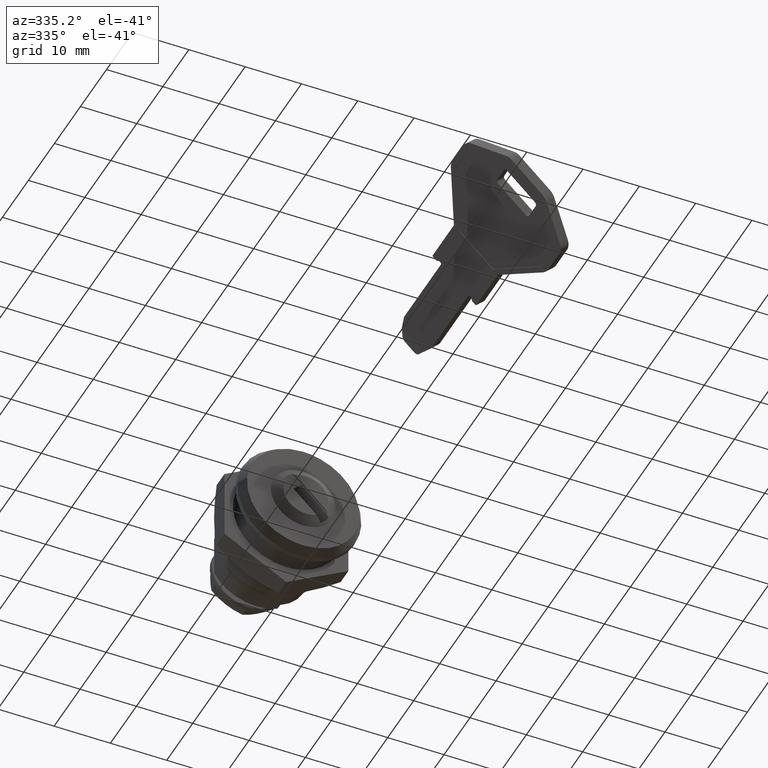
[diagram: clean part render]
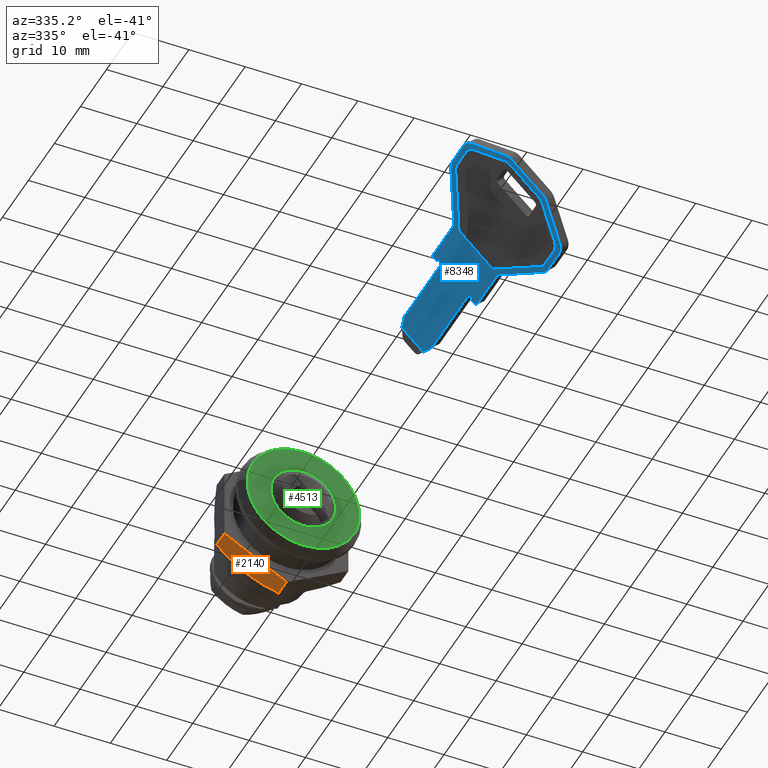
[diagram: same view with three faces highlighted in distinct colors, each labeled with its STEP entity id]
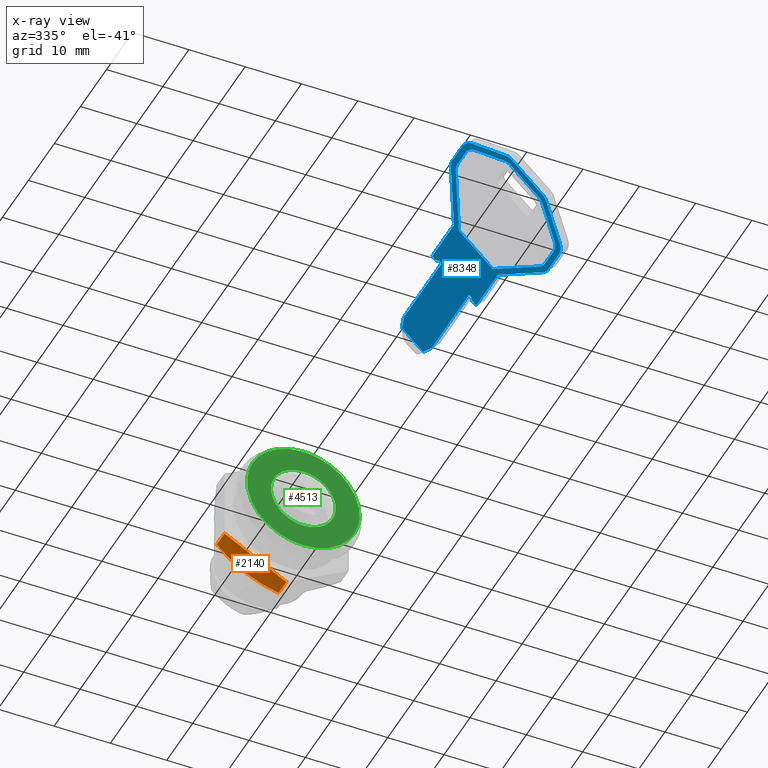
[diagram: x-ray of the same camera — body ghosted, the three highlighted faces saturated]
A machine part, auxiliary view with three faces highlighted in distinct colors.
The next image is the same camera in x-ray (body ghosted, the three faces saturated) — at least one of them is partly hidden behind the body in this view.
Their STEP definitions:

[orange] entity #2140 — the highlighted face is a freeform B-spline surface patch.
#1701=CARTESIAN_POINT('',(-5.499999999942680,8.0,-9.526279441475090));
#1702=VERTEX_POINT('',#1701);
#1866=CARTESIAN_POINT('',(-3.094187E-010,7.0,-12.701705921991399));
#1867=VERTEX_POINT('',#1866);
#1883=CARTESIAN_POINT('',(-3.094187E-010,7.0,-12.701705921991399));
#1884=CARTESIAN_POINT('',(-0.897390671200056,7.304464325262302,-12.183597176584550));
#1885=CARTESIAN_POINT('',(-1.801527311702609,7.555519008526865,-11.661593643806309));
#1886=CARTESIAN_POINT('',(-3.172334283524433,7.816493014346463,-10.870157869618140));
#1887=CARTESIAN_POINT('',(-3.631709724319129,7.884167932278352,-10.604937335216270));
#1888=CARTESIAN_POINT('',(-4.555988596839993,7.975751188450595,-10.071304679360180));
#1889=CARTESIAN_POINT('',(-5.020896851117833,7.999621345262170,-9.802889773604459));
#1890=CARTESIAN_POINT('',(-5.492515007715019,7.999998503333288,-9.530600903938415));
#1891=CARTESIAN_POINT('',(-5.496257409370683,7.999999999408750,-9.528440227335103));
#1892=CARTESIAN_POINT('',(-5.500000000103769,7.999999998507811,-9.526279441567890));
#1893=B_SPLINE_CURVE_WITH_KNOTS('',3,(#1883,#1884,#1885,#1886,#1887,#1888,#1889,#1890,#1891,#1892),.UNSPECIFIED.,.F.,.U.,(4,2,2,2,4),(0.0,0.250000000000000,0.375000000000000,0.500000000000000,0.500999787623325),.UNSPECIFIED.);
#1894=EDGE_CURVE('',#1867,#1702,#1893,.T.);
#1914=CARTESIAN_POINT('',(-11.0,7.0,-6.350852960781890));
#1915=VERTEX_POINT('',#1914);
#1916=CARTESIAN_POINT('',(-5.499999999942680,8.0,-9.526279441475090));
#1917=CARTESIAN_POINT('',(-5.613238213986109,7.999999971245863,-9.460901328300382));
#1918=CARTESIAN_POINT('',(-5.726649521151680,7.998629515743438,-9.395423279579207));
#1919=CARTESIAN_POINT('',(-5.957574947967782,7.993036632919321,-9.262098422244231));
#1920=CARTESIAN_POINT('',(-6.074949705895421,7.988722183411987,-9.194332074158652));
#1921=CARTESIAN_POINT('',(-6.426124768817859,7.971457702705862,-8.991581057047744));
#1922=CARTESIAN_POINT('',(-6.659396536889127,7.954173287218239,-8.856901538957489));
#1923=CARTESIAN_POINT('',(-7.356788676494619,7.885758877680175,-8.454261999425624));
#1924=CARTESIAN_POINT('',(-7.818480345211754,7.818029869564754,-8.187704190209232));
#1925=CARTESIAN_POINT('',(-9.195032415106715,7.556592680645004,-7.392951482102013));
#1926=CARTESIAN_POINT('',(-10.101404799745000,7.304872994714522,-6.869657141845171));
#1927=CARTESIAN_POINT('',(-11.000000000112850,6.999999999872600,-6.350852961020402));
#1928=B_SPLINE_CURVE_WITH_KNOTS('',3,(#1916,#1917,#1918,#1919,#1920,#1921,#1922,#1923,#1924,#1925,#1926,#1927),.UNSPECIFIED.,.F.,.U.,(4,2,2,2,2,4),(0.500999787651628,0.531250000000000,0.562500000000000,0.625000000000000,0.750000000000000,1.0),.UNSPECIFIED.);
#1929=EDGE_CURVE('',#1702,#1915,#1928,.T.);
#2061=CARTESIAN_POINT('',(-10.999999999989940,4.0,-6.350852961091360));
#2062=VERTEX_POINT('',#2061);
#2068=CARTESIAN_POINT('',(1.000469E-011,4.0,-12.701705922165839));
#2069=VERTEX_POINT('',#2068);
#2070=CARTESIAN_POINT('',(1.000469E-011,4.0,-12.701705922165839));
#2071=CARTESIAN_POINT('',(-10.999999999989940,4.0,-6.350852961091360));
#2072=QUASI_UNIFORM_CURVE('',1,(#2070,#2071),.UNSPECIFIED.,.F.,.U.);
#2073=EDGE_CURVE('',#2069,#2062,#2072,.T.);
#2109=CARTESIAN_POINT('',(-11.0,7.0,-6.350852960781890));
#2110=CARTESIAN_POINT('',(-10.999999999989940,4.0,-6.350852961091360));
#2111=QUASI_UNIFORM_CURVE('',1,(#2109,#2110),.UNSPECIFIED.,.F.,.U.);
#2112=EDGE_CURVE('',#1915,#2062,#2111,.T.);
#2124=CARTESIAN_POINT('',(-11.549449978818210,3.800200007752778,-6.033627867908697));
#2125=CARTESIAN_POINT('',(0.549450273735395,3.800200007752778,-13.018931185617410));
#2126=CARTESIAN_POINT('',(-11.549449978818210,8.199800099535580,-6.033627867908697));
#2127=CARTESIAN_POINT('',(0.549450273735396,8.199800099535580,-13.018931185617410));
#2128=B_SPLINE_SURFACE_WITH_KNOTS('',1,1,((#2124,#2126),(#2125,#2127)),.UNSPECIFIED.,.F.,.F.,.U.,(2,2),(2,2),(0.0,13.970606635419740),(0.0,4.399600091782801),.UNSPECIFIED.);
#2129=ORIENTED_EDGE('',*,*,#1894,.F.);
#2130=CARTESIAN_POINT('',(-3.094187E-010,7.0,-12.701705921991399));
#2131=CARTESIAN_POINT('',(1.000469E-011,4.0,-12.701705922165839));
#2132=QUASI_UNIFORM_CURVE('',1,(#2130,#2131),.UNSPECIFIED.,.F.,.U.);
#2133=EDGE_CURVE('',#1867,#2069,#2132,.T.);
#2134=ORIENTED_EDGE('',*,*,#2133,.T.);
#2135=ORIENTED_EDGE('',*,*,#2073,.T.);
#2136=ORIENTED_EDGE('',*,*,#2112,.F.);
#2137=ORIENTED_EDGE('',*,*,#1929,.F.);
#2138=EDGE_LOOP('',(#2129,#2134,#2135,#2136,#2137));
#2139=FACE_OUTER_BOUND('',#2138,.T.);
#2140=ADVANCED_FACE('',(#2139),#2128,.F.);

[blue] entity #8348 — the highlighted face is a freeform B-spline surface patch.
#6408=CARTESIAN_POINT('',(-3.712432859426663,-70.347984019646304,2.298219321256798));
#6409=VERTEX_POINT('',#6408);
#6410=CARTESIAN_POINT('',(-8.202595114907012,-78.817971744934098,6.788381576737147));
#6411=VERTEX_POINT('',#6410);
#6412=CARTESIAN_POINT('',(-3.712432859426663,-70.347984019646304,2.298219321256798));
#6413=CARTESIAN_POINT('',(-8.202595114907012,-78.817971744934098,6.788381576737147));
#6414=QUASI_UNIFORM_CURVE('',1,(#6412,#6413),.UNSPECIFIED.,.F.,.U.);
#6415=EDGE_CURVE('',#6409,#6411,#6414,.T.);
#6436=CARTESIAN_POINT('',(2.298219321261358,-70.347984019646404,-3.712432859431224));
#6437=VERTEX_POINT('',#6436);
#6438=CARTESIAN_POINT('',(2.298219321261358,-70.347984019646404,-3.712432859431224));
#6439=CARTESIAN_POINT('',(-3.712432859426663,-70.347984019646304,2.298219321256798));
#6440=QUASI_UNIFORM_CURVE('',1,(#6438,#6439),.UNSPECIFIED.,.F.,.U.);
#6441=EDGE_CURVE('',#6437,#6409,#6440,.T.);
#6458=CARTESIAN_POINT('',(6.788381576736915,-78.817971744925103,-8.202595114906782));
#6459=VERTEX_POINT('',#6458);
#6460=CARTESIAN_POINT('',(6.788381576736915,-78.817971744925103,-8.202595114906782));
#6461=CARTESIAN_POINT('',(2.298219321261358,-70.347984019646404,-3.712432859431224));
#6462=QUASI_UNIFORM_CURVE('',1,(#6460,#6461),.UNSPECIFIED.,.F.,.U.);
#6463=EDGE_CURVE('',#6459,#6437,#6462,.T.);
#6489=CARTESIAN_POINT('',(7.071067690849299,-80.017676412567297,-8.485281229019165));
#6490=VERTEX_POINT('',#6489);
#6491=CARTESIAN_POINT('',(7.071067690849299,-80.017676412567297,-8.485281229019165));
#6492=CARTESIAN_POINT('',(7.071067690849300,-79.351214817314997,-8.485281229019165));
#6493=CARTESIAN_POINT('',(6.788381576736905,-78.817971744925117,-8.202595114906771));
#6501=(BOUNDED_CURVE()B_SPLINE_CURVE(2,(#6491,#6492,#6493),.UNSPECIFIED.,.F.,.U.)CURVE()GEOMETRIC_REPRESENTATION_ITEM()QUASI_UNIFORM_CURVE()RATIONAL_B_SPLINE_CURVE((1.0,0.948712477082201,1.0))REPRESENTATION_ITEM(''));
#6502=EDGE_CURVE('',#6490,#6459,#6501,.T.);
#6519=CARTESIAN_POINT('',(7.071067690849299,-83.412432744212296,-8.485281229019165));
#6520=VERTEX_POINT('',#6519);
#6521=CARTESIAN_POINT('',(7.071067690849299,-83.412432744212296,-8.485281229019165));
#6522=CARTESIAN_POINT('',(7.071067690849299,-80.017676412567297,-8.485281229019165));
#6523=QUASI_UNIFORM_CURVE('',1,(#6521,#6522),.UNSPECIFIED.,.F.,.U.);
#6524=EDGE_CURVE('',#6520,#6490,#6523,.T.);
#6550=CARTESIAN_POINT('',(6.441318679806652,-85.076533332887806,-7.855532217976518));
#6551=VERTEX_POINT('',#6550);
#6552=CARTESIAN_POINT('',(6.441318679806703,-85.076533332887919,-7.855532217976569));
#6553=CARTESIAN_POINT('',(7.071067690849299,-84.482800261188203,-8.485281229019165));
#6554=CARTESIAN_POINT('',(7.071067690849299,-83.412432744212296,-8.485281229019165));
#6562=(BOUNDED_CURVE()B_SPLINE_CURVE(2,(#6552,#6553,#6554),.UNSPECIFIED.,.F.,.U.)CURVE()GEOMETRIC_REPRESENTATION_ITEM()QUASI_UNIFORM_CURVE()RATIONAL_B_SPLINE_CURVE((1.0,0.881674598767958,1.0))REPRESENTATION_ITEM(''));
#6563=EDGE_CURVE('',#6551,#6520,#6562,.T.);
#6580=CARTESIAN_POINT('',(2.617054110093343,-88.682084608321901,-4.031267648263210));
#6581=VERTEX_POINT('',#6580);
#6582=CARTESIAN_POINT('',(2.617054110093343,-88.682084608321901,-4.031267648263210));
#6583=CARTESIAN_POINT('',(6.441318679806652,-85.076533332887806,-7.855532217976518));
#6584=QUASI_UNIFORM_CURVE('',1,(#6582,#6583),.UNSPECIFIED.,.F.,.U.);
#6585=EDGE_CURVE('',#6581,#6551,#6584,.T.);
#6611=CARTESIAN_POINT('',(1.832589582966139,-89.017984019646192,-3.246803121136005));
#6612=VERTEX_POINT('',#6611);
#6613=CARTESIAN_POINT('',(1.832589582966139,-89.017984019646207,-3.246803121136005));
#6614=CARTESIAN_POINT('',(2.260778988874741,-89.017984019646207,-3.674992527044608));
#6615=CARTESIAN_POINT('',(2.617054110093339,-88.682084608321887,-4.031267648263205));
#6623=(BOUNDED_CURVE()B_SPLINE_CURVE(2,(#6613,#6614,#6615),.UNSPECIFIED.,.F.,.U.)CURVE()GEOMETRIC_REPRESENTATION_ITEM()QUASI_UNIFORM_CURVE()RATIONAL_B_SPLINE_CURVE((1.0,0.957092026489052,1.0))REPRESENTATION_ITEM(''));
#6624=EDGE_CURVE('',#6612,#6581,#6623,.T.);
#6641=CARTESIAN_POINT('',(-3.246803121027465,-89.017984019646292,1.832589582857599));
#6642=VERTEX_POINT('',#6641);
#6643=CARTESIAN_POINT('',(-3.246803121027465,-89.017984019646292,1.832589582857599));
#6644=CARTESIAN_POINT('',(1.832589582966139,-89.017984019646192,-3.246803121136005));
#6645=QUASI_UNIFORM_CURVE('',1,(#6643,#6644),.UNSPECIFIED.,.F.,.U.);
#6646=EDGE_CURVE('',#6642,#6612,#6645,.T.);
#6672=CARTESIAN_POINT('',(-4.031267648154801,-88.682084608321901,2.617054109984935));
#6673=VERTEX_POINT('',#6672);
#6674=CARTESIAN_POINT('',(-4.031267648154788,-88.682084608321873,2.617054109984923));
#6675=CARTESIAN_POINT('',(-3.674992526936149,-89.017984019646306,2.260778988766282));
#6676=CARTESIAN_POINT('',(-3.246803121027465,-89.017984019646306,1.832589582857599));
#6684=(BOUNDED_CURVE()B_SPLINE_CURVE(2,(#6674,#6675,#6676),.UNSPECIFIED.,.F.,.U.)CURVE()GEOMETRIC_REPRESENTATION_ITEM()QUASI_UNIFORM_CURVE()RATIONAL_B_SPLINE_CURVE((1.0,0.957092026489037,1.0))REPRESENTATION_ITEM(''));
#6685=EDGE_CURVE('',#6673,#6642,#6684,.T.);
#6702=CARTESIAN_POINT('',(-7.855532217976537,-85.076533332785502,6.441318679806670));
#6703=VERTEX_POINT('',#6702);
#6704=CARTESIAN_POINT('',(-7.855532217976537,-85.076533332785502,6.441318679806670));
#6705=CARTESIAN_POINT('',(-4.031267648154801,-88.682084608321901,2.617054109984935));
#6706=QUASI_UNIFORM_CURVE('',1,(#6704,#6705),.UNSPECIFIED.,.F.,.U.);
#6707=EDGE_CURVE('',#6703,#6673,#6706,.T.);
#6733=CARTESIAN_POINT('',(-8.485281229019270,-83.412432744212296,7.071067690849404));
#6734=VERTEX_POINT('',#6733);
#6735=CARTESIAN_POINT('',(-8.485281229019170,-83.412432744212296,7.071067690849304));
#6736=CARTESIAN_POINT('',(-8.485281228980380,-84.482800261122335,7.071067690810516));
#6737=CARTESIAN_POINT('',(-7.855532217976522,-85.076533332785473,6.441318679806655));
#6745=(BOUNDED_CURVE()B_SPLINE_CURVE(2,(#6735,#6736,#6737),.UNSPECIFIED.,.F.,.U.)CURVE()GEOMETRIC_REPRESENTATION_ITEM()QUASI_UNIFORM_CURVE()RATIONAL_B_SPLINE_CURVE((1.0,0.881674598780038,1.0))REPRESENTATION_ITEM(''));
#6746=EDGE_CURVE('',#6734,#6703,#6745,.T.);
#6763=CARTESIAN_POINT('',(-8.485281229019270,-80.017676412567297,7.071067690849404));
#6764=VERTEX_POINT('',#6763);
#6765=CARTESIAN_POINT('',(-8.485281229019270,-80.017676412567297,7.071067690849404));
#6766=CARTESIAN_POINT('',(-8.485281229019270,-83.412432744212296,7.071067690849404));
#6767=QUASI_UNIFORM_CURVE('',1,(#6765,#6766),.UNSPECIFIED.,.F.,.U.);
#6768=EDGE_CURVE('',#6764,#6734,#6767,.T.);
#6794=CARTESIAN_POINT('',(-8.202595114906853,-78.817971744934269,6.788381576736986));
#6795=CARTESIAN_POINT('',(-8.485281229017048,-79.351214817320098,7.071067690847182));
#6796=CARTESIAN_POINT('',(-8.485281229019170,-80.017676412567297,7.071067690849304));
#6804=(BOUNDED_CURVE()B_SPLINE_CURVE(2,(#6794,#6795,#6796),.UNSPECIFIED.,.F.,.U.)CURVE()GEOMETRIC_REPRESENTATION_ITEM()QUASI_UNIFORM_CURVE()RATIONAL_B_SPLINE_CURVE((1.0,0.948712477082927,1.0))REPRESENTATION_ITEM(''));
#6805=EDGE_CURVE('',#6411,#6764,#6804,.T.);
#6818=CARTESIAN_POINT('',(-2.612366674671664,-46.017984019645802,1.198153136501800));
#6819=VERTEX_POINT('',#6818);
#6820=CARTESIAN_POINT('',(1.198153136504262,-46.017984019645802,-2.612366674674125));
#6821=VERTEX_POINT('',#6820);
#6822=CARTESIAN_POINT('',(-2.612366674671664,-46.017984019645802,1.198153136501800));
#6823=CARTESIAN_POINT('',(1.198153136504262,-46.017984019645802,-2.612366674674125));
#6824=QUASI_UNIFORM_CURVE('',1,(#6822,#6823),.UNSPECIFIED.,.F.,.U.);
#6825=EDGE_CURVE('',#6819,#6821,#6824,.T.);
#7059=CARTESIAN_POINT('',(-9.192387998118271,-83.947616502736295,7.778174459948405));
#7060=VERTEX_POINT('',#7059);
#7061=CARTESIAN_POINT('',(-8.562638987068027,-85.611717091422307,7.148425448898162));
#7062=VERTEX_POINT('',#7061);
#7063=CARTESIAN_POINT('',(-9.192387998118271,-83.947616502736295,7.778174459948405));
#7064=CARTESIAN_POINT('',(-9.192387998114873,-85.017984019719137,7.778174459945006));
#7065=CARTESIAN_POINT('',(-8.562638987068031,-85.611717091422307,7.148425448898164));
#7073=(BOUNDED_CURVE()B_SPLINE_CURVE(2,(#7063,#7064,#7065),.UNSPECIFIED.,.F.,.U.)CURVE()GEOMETRIC_REPRESENTATION_ITEM()QUASI_UNIFORM_CURVE()RATIONAL_B_SPLINE_CURVE((1.0,0.881674598766678,1.0))REPRESENTATION_ITEM(''));
#7074=EDGE_CURVE('',#7060,#7062,#7073,.T.);
#7095=CARTESIAN_POINT('',(-9.192387998118186,-79.682605071029101,7.778174459948319));
#7096=VERTEX_POINT('',#7095);
#7097=CARTESIAN_POINT('',(-9.192387998118186,-79.682605071029101,7.778174459948319));
#7098=CARTESIAN_POINT('',(-9.192387998118271,-83.947616502736295,7.778174459948405));
#7099=QUASI_UNIFORM_CURVE('',1,(#7097,#7098),.UNSPECIFIED.,.F.,.U.);
#7100=EDGE_CURVE('',#7096,#7060,#7099,.T.);
#7126=CARTESIAN_POINT('',(-8.911106036181378,-78.485553693996295,7.496892498011512));
#7127=VERTEX_POINT('',#7126);
#7128=CARTESIAN_POINT('',(-8.911106036181378,-78.485553693996295,7.496892498011512));
#7129=CARTESIAN_POINT('',(-9.192387998118845,-79.017984019909576,7.778174459948978));
#7130=CARTESIAN_POINT('',(-9.192387998118186,-79.682605071029101,7.778174459948319));
#7138=(BOUNDED_CURVE()B_SPLINE_CURVE(2,(#7128,#7129,#7130),.UNSPECIFIED.,.F.,.U.)CURVE()GEOMETRIC_REPRESENTATION_ITEM()QUASI_UNIFORM_CURVE()RATIONAL_B_SPLINE_CURVE((1.0,0.948974081281307,1.0))REPRESENTATION_ITEM(''));
#7139=EDGE_CURVE('',#7127,#7096,#7138,.T.);
#7156=CARTESIAN_POINT('',(-4.596193999052151,-70.317984019646204,3.181980460882286));
#7157=VERTEX_POINT('',#7156);
#7158=CARTESIAN_POINT('',(-4.596193999052151,-70.317984019646204,3.181980460882286));
#7159=CARTESIAN_POINT('',(-8.911106036181378,-78.485553693996295,7.496892498011512));
#7160=QUASI_UNIFORM_CURVE('',1,(#7158,#7159),.UNSPECIFIED.,.F.,.U.);
#7161=EDGE_CURVE('',#7157,#7127,#7160,.T.);
#7178=CARTESIAN_POINT('',(-4.596193999052158,-62.217984019645201,3.181980460882293));
#7179=VERTEX_POINT('',#7178);
#7180=CARTESIAN_POINT('',(-4.596193999052158,-62.217984019645201,3.181980460882293));
#7181=CARTESIAN_POINT('',(-4.596193999052151,-70.317984019646204,3.181980460882286));
#7182=QUASI_UNIFORM_CURVE('',1,(#7180,#7181),.UNSPECIFIED.,.F.,.U.);
#7183=EDGE_CURVE('',#7179,#7157,#7182,.T.);
#7209=CARTESIAN_POINT('',(-4.454772645235137,-62.017984019646200,3.040559107065272));
#7210=VERTEX_POINT('',#7209);
#7211=CARTESIAN_POINT('',(-4.454772645235137,-62.017984019646200,3.040559107065272));
#7212=CARTESIAN_POINT('',(-4.596193999037597,-62.017984019665739,3.181980460867732));
#7213=CARTESIAN_POINT('',(-4.596193999052160,-62.217984019645201,3.181980460882295));
#7221=(BOUNDED_CURVE()B_SPLINE_CURVE(2,(#7211,#7212,#7213),.UNSPECIFIED.,.F.,.U.)CURVE()GEOMETRIC_REPRESENTATION_ITEM()QUASI_UNIFORM_CURVE()RATIONAL_B_SPLINE_CURVE((1.0,0.707106781222954,1.0))REPRESENTATION_ITEM(''));
#7222=EDGE_CURVE('',#7210,#7179,#7221,.T.);
#7239=CARTESIAN_POINT('',(-3.915000149279887,-62.017984019646299,2.500786611110022));
#7240=VERTEX_POINT('',#7239);
#7241=CARTESIAN_POINT('',(-3.915000149279887,-62.017984019646299,2.500786611110022));
#7242=CARTESIAN_POINT('',(-4.454772645235137,-62.017984019646200,3.040559107065272));
#7243=QUASI_UNIFORM_CURVE('',1,(#7241,#7242),.UNSPECIFIED.,.F.,.U.);
#7244=EDGE_CURVE('',#7240,#7210,#7243,.T.);
#7270=CARTESIAN_POINT('',(-3.811828010166809,-62.081195793866399,2.397614471996944));
#7271=VERTEX_POINT('',#7270);
#7272=CARTESIAN_POINT('',(-3.811828010166809,-62.081195793866399,2.397614471996944));
#7273=CARTESIAN_POINT('',(-3.853731891543416,-62.017984019646370,2.439518353373552));
#7274=CARTESIAN_POINT('',(-3.915000149279887,-62.017984019646342,2.500786611110022));
#7282=(BOUNDED_CURVE()B_SPLINE_CURVE(2,(#7272,#7273,#7274),.UNSPECIFIED.,.F.,.U.)CURVE()GEOMETRIC_REPRESENTATION_ITEM()QUASI_UNIFORM_CURVE()RATIONAL_B_SPLINE_CURVE((1.0,0.917589540245754,1.0))REPRESENTATION_ITEM(''));
#7283=EDGE_CURVE('',#7271,#7240,#7282,.T.);
#7300=CARTESIAN_POINT('',(-3.630470734446273,-62.354772245407503,2.216257196276408));
#7301=VERTEX_POINT('',#7300);
#7302=CARTESIAN_POINT('',(-3.630470734446273,-62.354772245407503,2.216257196276408));
#7303=CARTESIAN_POINT('',(-3.811828010166809,-62.081195793866399,2.397614471996944));
#7304=QUASI_UNIFORM_CURVE('',1,(#7302,#7303),.UNSPECIFIED.,.F.,.U.);
#7305=EDGE_CURVE('',#7301,#7271,#7304,.T.);
#7331=CARTESIAN_POINT('',(-3.527298595388518,-62.417984019646312,2.113085057218653));
#7332=VERTEX_POINT('',#7331);
#7333=CARTESIAN_POINT('',(-3.630470734446289,-62.354772245407517,2.216257196276424));
#7334=CARTESIAN_POINT('',(-3.588566853104223,-62.417984019633082,2.174353314934359));
#7335=CARTESIAN_POINT('',(-3.527298595388518,-62.417984019646291,2.113085057218653));
#7343=(BOUNDED_CURVE()B_SPLINE_CURVE(2,(#7333,#7334,#7335),.UNSPECIFIED.,.F.,.U.)CURVE()GEOMETRIC_REPRESENTATION_ITEM()QUASI_UNIFORM_CURVE()RATIONAL_B_SPLINE_CURVE((1.0,0.917589540294916,1.0))REPRESENTATION_ITEM(''));
#7344=EDGE_CURVE('',#7301,#7332,#7343,.T.);
#7361=CARTESIAN_POINT('',(-3.288046476245015,-62.417984019645800,1.873832938075151));
#7362=VERTEX_POINT('',#7361);
#7363=CARTESIAN_POINT('',(-3.288046476245015,-62.417984019645800,1.873832938075151));
#7364=CARTESIAN_POINT('',(-3.527298595388518,-62.417984019646312,2.113085057218653));
#7365=QUASI_UNIFORM_CURVE('',1,(#7363,#7364),.UNSPECIFIED.,.F.,.U.);
#7366=EDGE_CURVE('',#7362,#7332,#7365,.T.);
#7392=CARTESIAN_POINT('',(-3.146625122428079,-62.217984019646401,1.732411584258214));
#7393=VERTEX_POINT('',#7392);
#7394=CARTESIAN_POINT('',(-3.288046476245015,-62.417984019645793,1.873832938075151));
#7395=CARTESIAN_POINT('',(-3.146625122428465,-62.417984019645793,1.732411584258599));
#7396=CARTESIAN_POINT('',(-3.146625122428037,-62.217984019646401,1.732411584258172));
#7404=(BOUNDED_CURVE()B_SPLINE_CURVE(2,(#7394,#7395,#7396),.UNSPECIFIED.,.F.,.U.)CURVE()GEOMETRIC_REPRESENTATION_ITEM()QUASI_UNIFORM_CURVE()RATIONAL_B_SPLINE_CURVE((1.0,0.707106781187615,1.0))REPRESENTATION_ITEM(''));
#7405=EDGE_CURVE('',#7362,#7393,#7404,.T.);
#7422=CARTESIAN_POINT('',(-3.146625122427996,-48.200575424542599,1.732411584258133));
#7423=VERTEX_POINT('',#7422);
#7424=CARTESIAN_POINT('',(-3.146625122427996,-48.200575424542599,1.732411584258133));
#7425=CARTESIAN_POINT('',(-3.146625122428079,-62.217984019646401,1.732411584258214));
#7426=QUASI_UNIFORM_CURVE('',1,(#7424,#7425),.UNSPECIFIED.,.F.,.U.);
#7427=EDGE_CURVE('',#7423,#7393,#7426,.T.);
#7453=CARTESIAN_POINT('',(-3.100997003067094,-47.847174855825912,1.686783464897230));
#7454=VERTEX_POINT('',#7453);
#7455=CARTESIAN_POINT('',(-3.100997003067094,-47.847174855825912,1.686783464897230));
#7456=CARTESIAN_POINT('',(-3.146625122428874,-48.017984019648381,1.732411584259011));
#7457=CARTESIAN_POINT('',(-3.146625122427996,-48.200575424542599,1.732411584258133));
#7465=(BOUNDED_CURVE()B_SPLINE_CURVE(2,(#7455,#7456,#7457),.UNSPECIFIED.,.F.,.U.)CURVE()GEOMETRIC_REPRESENTATION_ITEM()QUASI_UNIFORM_CURVE()RATIONAL_B_SPLINE_CURVE((1.0,0.983735760676532,1.0))REPRESENTATION_ITEM(''));
#7466=EDGE_CURVE('',#7454,#7423,#7465,.T.);
#7492=CARTESIAN_POINT('',(1.732411584258048,-48.200575424545796,-3.146625122427912));
#7493=VERTEX_POINT('',#7492);
#7494=CARTESIAN_POINT('',(1.686783464897655,-47.847174855822203,-3.100997003067519));
#7495=VERTEX_POINT('',#7494);
#7496=CARTESIAN_POINT('',(1.732411584258048,-48.200575424545796,-3.146625122427912));
#7497=CARTESIAN_POINT('',(1.732411584263450,-48.017984019647209,-3.146625122433314));
#7498=CARTESIAN_POINT('',(1.686783464897659,-47.847174855822203,-3.100997003067523));
#7506=(BOUNDED_CURVE()B_SPLINE_CURVE(2,(#7496,#7497,#7498),.UNSPECIFIED.,.F.,.U.)CURVE()GEOMETRIC_REPRESENTATION_ITEM()QUASI_UNIFORM_CURVE()RATIONAL_B_SPLINE_CURVE((1.0,0.983735760675772,1.0))REPRESENTATION_ITEM(''));
#7507=EDGE_CURVE('',#7493,#7495,#7506,.T.);
#7528=CARTESIAN_POINT('',(1.732411584229731,-62.217984019646302,-3.146625122399596));
#7529=VERTEX_POINT('',#7528);
#7530=CARTESIAN_POINT('',(1.732411584229731,-62.217984019646302,-3.146625122399596));
#7531=CARTESIAN_POINT('',(1.732411584258048,-48.200575424545796,-3.146625122427912));
#7532=QUASI_UNIFORM_CURVE('',1,(#7530,#7531),.UNSPECIFIED.,.F.,.U.);
#7533=EDGE_CURVE('',#7529,#7493,#7532,.T.);
#7559=CARTESIAN_POINT('',(1.873832938075005,-62.417984019646312,-3.288046476244870));
#7560=VERTEX_POINT('',#7559);
#7561=CARTESIAN_POINT('',(1.732411584229731,-62.217984019646302,-3.146625122399596));
#7562=CARTESIAN_POINT('',(1.732233237065539,-62.263861883969959,-3.146446775235403));
#7563=CARTESIAN_POINT('',(1.752355113013847,-62.342071030676983,-3.166568651183712));
#7564=CARTESIAN_POINT('',(1.813660713404078,-62.406282811982287,-3.227874251573946));
#7565=CARTESIAN_POINT('',(1.855331509362423,-62.418008561580812,-3.269545047532284));
#7566=CARTESIAN_POINT('',(1.873832938075005,-62.417984019646312,-3.288046476244870));
#7567=B_SPLINE_CURVE_WITH_KNOTS('',3,(#7561,#7562,#7563,#7564,#7565,#7566),.UNSPECIFIED.,.F.,.U.,(4,1,1,4),(0.000000859340513,0.137513072128217,0.235713900700947,0.314284914487710),.UNSPECIFIED.);
#7568=EDGE_CURVE('',#7529,#7560,#7567,.T.);
#7585=CARTESIAN_POINT('',(2.113085057217801,-62.417984019706303,-3.527298595387665));
#7586=VERTEX_POINT('',#7585);
#7587=CARTESIAN_POINT('',(2.113085057217801,-62.417984019706303,-3.527298595387665));
#7588=CARTESIAN_POINT('',(1.873832938075005,-62.417984019646312,-3.288046476244870));
#7589=QUASI_UNIFORM_CURVE('',1,(#7587,#7588),.UNSPECIFIED.,.F.,.U.);
#7590=EDGE_CURVE('',#7586,#7560,#7589,.T.);
#7616=CARTESIAN_POINT('',(2.216257196282287,-62.354772245426403,-3.630470734452152));
#7617=VERTEX_POINT('',#7616);
#7618=CARTESIAN_POINT('',(2.113085057217801,-62.417984019706353,-3.527298595387665));
#7619=CARTESIAN_POINT('',(2.174353314945078,-62.417984019680837,-3.588566853114943));
#7620=CARTESIAN_POINT('',(2.216257196282559,-62.354772245426759,-3.630470734452424));
#7628=(BOUNDED_CURVE()B_SPLINE_CURVE(2,(#7618,#7619,#7620),.UNSPECIFIED.,.F.,.U.)CURVE()GEOMETRIC_REPRESENTATION_ITEM()QUASI_UNIFORM_CURVE()RATIONAL_B_SPLINE_CURVE((1.0,0.917589540267572,1.0))REPRESENTATION_ITEM(''));
#7629=EDGE_CURVE('',#7586,#7617,#7628,.T.);
#7646=CARTESIAN_POINT('',(2.397614471992453,-62.081195793866002,-3.811828010162318));
#7647=VERTEX_POINT('',#7646);
#7648=CARTESIAN_POINT('',(2.397614471992453,-62.081195793866002,-3.811828010162318));
#7649=CARTESIAN_POINT('',(2.216257196282287,-62.354772245426403,-3.630470734452152));
#7650=QUASI_UNIFORM_CURVE('',1,(#7648,#7649),.UNSPECIFIED.,.F.,.U.);
#7651=EDGE_CURVE('',#7647,#7617,#7650,.T.);
#7677=CARTESIAN_POINT('',(2.500786611060479,-62.017984019646200,-3.915000149230344));
#7678=VERTEX_POINT('',#7677);
#7679=CARTESIAN_POINT('',(2.500786611060479,-62.017984019646200,-3.915000149230344));
#7680=CARTESIAN_POINT('',(2.439518353347487,-62.017984019662890,-3.853731891517351));
#7681=CARTESIAN_POINT('',(2.397614471992432,-62.081195793865973,-3.811828010162297));
#7689=(BOUNDED_CURVE()B_SPLINE_CURVE(2,(#7679,#7680,#7681),.UNSPECIFIED.,.F.,.U.)CURVE()GEOMETRIC_REPRESENTATION_ITEM()QUASI_UNIFORM_CURVE()RATIONAL_B_SPLINE_CURVE((1.0,0.917589540301383,1.0))REPRESENTATION_ITEM(''));
#7690=EDGE_CURVE('',#7678,#7647,#7689,.T.);
#7707=CARTESIAN_POINT('',(3.040559107065062,-62.017984019646299,-4.454772645234927));
#7708=VERTEX_POINT('',#7707);
#7709=CARTESIAN_POINT('',(3.040559107065062,-62.017984019646299,-4.454772645234927));
#7710=CARTESIAN_POINT('',(2.500786611060479,-62.017984019646200,-3.915000149230344));
#7711=QUASI_UNIFORM_CURVE('',1,(#7709,#7710),.UNSPECIFIED.,.F.,.U.);
#7712=EDGE_CURVE('',#7708,#7678,#7711,.T.);
#7738=CARTESIAN_POINT('',(3.181980460882140,-62.217984019646302,-4.596193999052005));
#7739=VERTEX_POINT('',#7738);
#7740=CARTESIAN_POINT('',(3.181980460882140,-62.217984019646302,-4.596193999052005));
#7741=CARTESIAN_POINT('',(3.181993818638004,-62.191811320684913,-4.596207356807869));
#7742=CARTESIAN_POINT('',(3.173710839133737,-62.132893304202312,-4.587924377303602));
#7743=CARTESIAN_POINT('',(3.128299336275664,-62.046184677539230,-4.542512874445528));
#7744=CARTESIAN_POINT('',(3.073000025763064,-62.017733326881633,-4.487213563932930));
#7745=CARTESIAN_POINT('',(3.040559107065062,-62.017984019646299,-4.454772645234927));
#7746=B_SPLINE_CURVE_WITH_KNOTS('',3,(#7740,#7741,#7742,#7743,#7744,#7745),.UNSPECIFIED.,.F.,.U.,(4,1,1,4),(0.000000859341067,0.078571873121533,0.176772701686318,0.314284914463000),.UNSPECIFIED.);
#7747=EDGE_CURVE('',#7739,#7708,#7746,.T.);
#7764=CARTESIAN_POINT('',(3.181980460882182,-70.317984019646204,-4.596193999052048));
#7765=VERTEX_POINT('',#7764);
#7766=CARTESIAN_POINT('',(3.181980460882182,-70.317984019646204,-4.596193999052048));
#7767=CARTESIAN_POINT('',(3.181980460882140,-62.217984019646302,-4.596193999052005));
#7768=QUASI_UNIFORM_CURVE('',1,(#7766,#7767),.UNSPECIFIED.,.F.,.U.);
#7769=EDGE_CURVE('',#7765,#7739,#7768,.T.);
#7786=CARTESIAN_POINT('',(7.496892498012949,-78.485553693995882,-8.911106036182815));
#7787=VERTEX_POINT('',#7786);
#7788=CARTESIAN_POINT('',(7.496892498012949,-78.485553693995882,-8.911106036182815));
#7789=CARTESIAN_POINT('',(3.181980460882182,-70.317984019646204,-4.596193999052048));
#7790=QUASI_UNIFORM_CURVE('',1,(#7788,#7789),.UNSPECIFIED.,.F.,.U.);
#7791=EDGE_CURVE('',#7787,#7765,#7790,.T.);
#7817=CARTESIAN_POINT('',(7.778174459948330,-79.682605071026302,-9.192387998118196));
#7818=VERTEX_POINT('',#7817);
#7819=CARTESIAN_POINT('',(7.778174459948300,-79.682605071026302,-9.192387998118166));
#7820=CARTESIAN_POINT('',(7.778174459945948,-79.017984019909946,-9.192387998115814));
#7821=CARTESIAN_POINT('',(7.496892498012970,-78.485553693995854,-8.911106036182837));
#7829=(BOUNDED_CURVE()B_SPLINE_CURVE(2,(#7819,#7820,#7821),.UNSPECIFIED.,.F.,.U.)CURVE()GEOMETRIC_REPRESENTATION_ITEM()QUASI_UNIFORM_CURVE()RATIONAL_B_SPLINE_CURVE((1.0,0.948974081281752,1.0))REPRESENTATION_ITEM(''));
#7830=EDGE_CURVE('',#7818,#7787,#7829,.T.);
#7847=CARTESIAN_POINT('',(7.778174459948302,-83.947616502735897,-9.192387998118168));
#7848=VERTEX_POINT('',#7847);
#7849=CARTESIAN_POINT('',(7.778174459948302,-83.947616502735897,-9.192387998118168));
#7850=CARTESIAN_POINT('',(7.778174459948330,-79.682605071026302,-9.192387998118196));
#7851=QUASI_UNIFORM_CURVE('',1,(#7849,#7850),.UNSPECIFIED.,.F.,.U.);
#7852=EDGE_CURVE('',#7848,#7818,#7851,.T.);
#7878=CARTESIAN_POINT('',(7.148425448898355,-85.611717091416310,-8.562638987068223));
#7879=VERTEX_POINT('',#7878);
#7880=CARTESIAN_POINT('',(7.148425448898355,-85.611717091416310,-8.562638987068223));
#7881=CARTESIAN_POINT('',(7.778174459948453,-85.017984019719208,-9.192387998118319));
#7882=CARTESIAN_POINT('',(7.778174459948300,-83.947616502735897,-9.192387998118166));
#7890=(BOUNDED_CURVE()B_SPLINE_CURVE(2,(#7880,#7881,#7882),.UNSPECIFIED.,.F.,.U.)CURVE()GEOMETRIC_REPRESENTATION_ITEM()QUASI_UNIFORM_CURVE()RATIONAL_B_SPLINE_CURVE((1.0,0.881674598766593,1.0))REPRESENTATION_ITEM(''));
#7891=EDGE_CURVE('',#7879,#7848,#7890,.T.);
#7908=CARTESIAN_POINT('',(2.831148813059662,-89.682084608323308,-4.245362351229527));
#7909=VERTEX_POINT('',#7908);
#7910=CARTESIAN_POINT('',(2.831148813059662,-89.682084608323308,-4.245362351229527));
#7911=CARTESIAN_POINT('',(7.148425448898355,-85.611717091416310,-8.562638987068223));
#7912=QUASI_UNIFORM_CURVE('',1,(#7910,#7911),.UNSPECIFIED.,.F.,.U.);
#7913=EDGE_CURVE('',#7909,#7879,#7912,.T.);
#7939=CARTESIAN_POINT('',(2.046684285940980,-90.017984019646192,-3.460897824110846));
#7940=VERTEX_POINT('',#7939);
#7941=CARTESIAN_POINT('',(2.046684285940980,-90.017984019646192,-3.460897824110846));
#7942=CARTESIAN_POINT('',(2.474873691841546,-90.017984019646192,-3.889087230011412));
#7943=CARTESIAN_POINT('',(2.831148813059642,-89.682084608323265,-4.245362351229508));
#7951=(BOUNDED_CURVE()B_SPLINE_CURVE(2,(#7941,#7942,#7943),.UNSPECIFIED.,.F.,.U.)CURVE()GEOMETRIC_REPRESENTATION_ITEM()QUASI_UNIFORM_CURVE()RATIONAL_B_SPLINE_CURVE((1.0,0.957092026489233,1.0))REPRESENTATION_ITEM(''));
#7952=EDGE_CURVE('',#7940,#7909,#7951,.T.);
#7969=CARTESIAN_POINT('',(-3.460897824110389,-90.017984019646292,2.046684285940522));
#7970=VERTEX_POINT('',#7969);
#7971=CARTESIAN_POINT('',(-3.460897824110389,-90.017984019646292,2.046684285940522));
#7972=CARTESIAN_POINT('',(2.046684285940980,-90.017984019646192,-3.460897824110846));
#7973=QUASI_UNIFORM_CURVE('',1,(#7971,#7972),.UNSPECIFIED.,.F.,.U.);
#7974=EDGE_CURVE('',#7970,#7940,#7973,.T.);
#8000=CARTESIAN_POINT('',(-4.245362351233344,-89.682084608326392,2.831148813063478));
#8001=VERTEX_POINT('',#8000);
#8002=CARTESIAN_POINT('',(-4.245362351233355,-89.682084608326420,2.831148813063490));
#8003=CARTESIAN_POINT('',(-3.889087230016381,-90.017984019646292,2.474873691846514));
#8004=CARTESIAN_POINT('',(-3.460897824110873,-90.017984019646292,2.046684285941006));
#8012=(BOUNDED_CURVE()B_SPLINE_CURVE(2,(#8002,#8003,#8004),.UNSPECIFIED.,.F.,.U.)CURVE()GEOMETRIC_REPRESENTATION_ITEM()QUASI_UNIFORM_CURVE()RATIONAL_B_SPLINE_CURVE((1.0,0.957092026489633,1.0))REPRESENTATION_ITEM(''));
#8013=EDGE_CURVE('',#8001,#7970,#8012,.T.);
#8030=CARTESIAN_POINT('',(-8.562638987068027,-85.611717091422307,7.148425448898162));
#8031=CARTESIAN_POINT('',(-4.245362351233344,-89.682084608326392,2.831148813063478));
#8032=QUASI_UNIFORM_CURVE('',1,(#8030,#8031),.UNSPECIFIED.,.F.,.U.);
#8033=EDGE_CURVE('',#7062,#8001,#8032,.T.);
#8052=CARTESIAN_POINT('',(-2.612366674671664,-46.017984019645802,1.198153136501800));
#8053=CARTESIAN_POINT('',(-3.100997003067094,-47.847174855825912,1.686783464897230));
#8054=QUASI_UNIFORM_CURVE('',1,(#8052,#8053),.UNSPECIFIED.,.F.,.U.);
#8055=EDGE_CURVE('',#6819,#7454,#8054,.T.);
#8276=CARTESIAN_POINT('',(1.686783464897655,-47.847174855822203,-3.100997003067519));
#8277=CARTESIAN_POINT('',(1.198153136504262,-46.017984019645802,-2.612366674674125));
#8278=QUASI_UNIFORM_CURVE('',1,(#8276,#8277),.UNSPECIFIED.,.F.,.U.);
#8279=EDGE_CURVE('',#7495,#6821,#8278,.T.);
#8289=CARTESIAN_POINT('',(-10.040067560006451,-92.215783934365774,8.625854021836588));
#8290=CARTESIAN_POINT('',(-10.040067560006451,-43.820182924754342,8.625854021836588));
#8291=CARTESIAN_POINT('',(8.625854477022472,-92.215783934365774,-10.040068015192340));
#8292=CARTESIAN_POINT('',(8.625854477022473,-43.820182924754342,-10.040068015192340));
#8293=B_SPLINE_SURFACE_WITH_KNOTS('',1,1,((#8289,#8291),(#8290,#8292)),.UNSPECIFIED.,.F.,.F.,.U.,(2,2),(2,2),(0.0,48.395601009611433),(0.0,26.397600550740830),.UNSPECIFIED.);
#8294=ORIENTED_EDGE('',*,*,#8055,.F.);
#8295=ORIENTED_EDGE('',*,*,#6825,.T.);
#8296=ORIENTED_EDGE('',*,*,#8279,.F.);
#8297=ORIENTED_EDGE('',*,*,#7507,.F.);
#8298=ORIENTED_EDGE('',*,*,#7533,.F.);
#8299=ORIENTED_EDGE('',*,*,#7568,.T.);
#8300=ORIENTED_EDGE('',*,*,#7590,.F.);
#8301=ORIENTED_EDGE('',*,*,#7629,.T.);
#8302=ORIENTED_EDGE('',*,*,#7651,.F.);
#8303=ORIENTED_EDGE('',*,*,#7690,.F.);
#8304=ORIENTED_EDGE('',*,*,#7712,.F.);
#8305=ORIENTED_EDGE('',*,*,#7747,.F.);
#8306=ORIENTED_EDGE('',*,*,#7769,.F.);
#8307=ORIENTED_EDGE('',*,*,#7791,.F.);
#8308=ORIENTED_EDGE('',*,*,#7830,.F.);
#8309=ORIENTED_EDGE('',*,*,#7852,.F.);
#8310=ORIENTED_EDGE('',*,*,#7891,.F.);
#8311=ORIENTED_EDGE('',*,*,#7913,.F.);
#8312=ORIENTED_EDGE('',*,*,#7952,.F.);
#8313=ORIENTED_EDGE('',*,*,#7974,.F.);
#8314=ORIENTED_EDGE('',*,*,#8013,.F.);
#8315=ORIENTED_EDGE('',*,*,#8033,.F.);
#8316=ORIENTED_EDGE('',*,*,#7074,.F.);
#8317=ORIENTED_EDGE('',*,*,#7100,.F.);
#8318=ORIENTED_EDGE('',*,*,#7139,.F.);
#8319=ORIENTED_EDGE('',*,*,#7161,.F.);
#8320=ORIENTED_EDGE('',*,*,#7183,.F.);
#8321=ORIENTED_EDGE('',*,*,#7222,.F.);
#8322=ORIENTED_EDGE('',*,*,#7244,.F.);
#8323=ORIENTED_EDGE('',*,*,#7283,.F.);
#8324=ORIENTED_EDGE('',*,*,#7305,.F.);
#8325=ORIENTED_EDGE('',*,*,#7344,.T.);
#8326=ORIENTED_EDGE('',*,*,#7366,.F.);
#8327=ORIENTED_EDGE('',*,*,#7405,.T.);
#8328=ORIENTED_EDGE('',*,*,#7427,.F.);
#8329=ORIENTED_EDGE('',*,*,#7466,.F.);
#8330=EDGE_LOOP('',(#8294,#8295,#8296,#8297,#8298,#8299,#8300,#8301,#8302,#8303,#8304,#8305,#8306,#8307,#8308,#8309,#8310,#8311,#8312,#8313,#8314,#8315,#8316,#8317,#8318,#8319,#8320,#8321,#8322,#8323,#8324,#8325,#8326,#8327,#8328,#8329));
#8331=FACE_OUTER_BOUND('',#8330,.T.);
#8332=ORIENTED_EDGE('',*,*,#6805,.T.);
#8333=ORIENTED_EDGE('',*,*,#6768,.T.);
#8334=ORIENTED_EDGE('',*,*,#6746,.T.);
#8335=ORIENTED_EDGE('',*,*,#6707,.T.);
#8336=ORIENTED_EDGE('',*,*,#6685,.T.);
#8337=ORIENTED_EDGE('',*,*,#6646,.T.);
#8338=ORIENTED_EDGE('',*,*,#6624,.T.);
#8339=ORIENTED_EDGE('',*,*,#6585,.T.);
#8340=ORIENTED_EDGE('',*,*,#6563,.T.);
#8341=ORIENTED_EDGE('',*,*,#6524,.T.);
#8342=ORIENTED_EDGE('',*,*,#6502,.T.);
#8343=ORIENTED_EDGE('',*,*,#6463,.T.);
#8344=ORIENTED_EDGE('',*,*,#6441,.T.);
#8345=ORIENTED_EDGE('',*,*,#6415,.T.);
#8346=EDGE_LOOP('',(#8332,#8333,#8334,#8335,#8336,#8337,#8338,#8339,#8340,#8341,#8342,#8343,#8344,#8345));
#8347=FACE_BOUND('',#8346,.T.);
#8348=ADVANCED_FACE('',(#8331,#8347),#8293,.T.);

[green] entity #4513 — the highlighted face is a freeform B-spline surface patch.
#4329=CARTESIAN_POINT('',(-9.969173337333023,-2.499999999991034,0.784590957332443));
#4330=VERTEX_POINT('',#4329);
#4336=CARTESIAN_POINT('',(-1.530758E-016,-2.500000000000000,10.0));
#4337=VERTEX_POINT('',#4336);
#4338=CARTESIAN_POINT('',(-1.530758E-016,-2.500000000000000,10.0));
#4339=CARTESIAN_POINT('',(-9.243904916535264,-2.499999999995517,10.000000000000234));
#4340=CARTESIAN_POINT('',(-9.969173337333023,-2.499999999991035,0.784590957332443));
#4348=(BOUNDED_CURVE()B_SPLINE_CURVE(2,(#4338,#4339,#4340),.UNSPECIFIED.,.F.,.U.)B_SPLINE_CURVE_WITH_KNOTS((3,3),(0.0,0.236331300631847),.UNSPECIFIED.)CURVE()GEOMETRIC_REPRESENTATION_ITEM()RATIONAL_B_SPLINE_CURVE((1.0,0.723120658606275,0.969723356169895))REPRESENTATION_ITEM(''));
#4349=EDGE_CURVE('',#4337,#4330,#4348,.T.);
#4351=CARTESIAN_POINT('',(9.969173337333023,-2.499999999991035,-0.784590957332440));
#4352=VERTEX_POINT('',#4351);
#4353=CARTESIAN_POINT('',(9.969173337333023,-2.499999999991034,-0.784590957332440));
#4354=CARTESIAN_POINT('',(10.000000000005848,-2.499999999991198,-0.392901070104042));
#4355=CARTESIAN_POINT('',(10.000000000005731,-2.499999999991374,-4.528317E-013));
#4356=CARTESIAN_POINT('',(10.000000000002753,-2.499999999995857,9.999999999999782));
#4357=CARTESIAN_POINT('',(-1.530758E-016,-2.500000000000000,10.0));
#4365=(BOUNDED_CURVE()B_SPLINE_CURVE(2,(#4353,#4354,#4355,#4356,#4357),.UNSPECIFIED.,.F.,.U.)B_SPLINE_CURVE_WITH_KNOTS((3,2,3),(0.736331300631847,0.750000000000000,1.0),.UNSPECIFIED.)CURVE()GEOMETRIC_REPRESENTATION_ITEM()RATIONAL_B_SPLINE_CURVE((0.969723356169895,0.983986122580273,1.0,0.707106781186548,1.0))REPRESENTATION_ITEM(''));
#4366=EDGE_CURVE('',#4352,#4337,#4365,.T.);
#4402=CARTESIAN_POINT('',(-1.530758E-016,-2.500000000000000,-10.0));
#4403=VERTEX_POINT('',#4402);
#4404=CARTESIAN_POINT('',(-1.530758E-016,-2.500000000000000,-10.0));
#4405=CARTESIAN_POINT('',(9.243904916535270,-2.499999999995517,-10.000000000000236));
#4406=CARTESIAN_POINT('',(9.969173337333023,-2.499999999991034,-0.784590957332440));
#4414=(BOUNDED_CURVE()B_SPLINE_CURVE(2,(#4404,#4405,#4406),.UNSPECIFIED.,.F.,.U.)B_SPLINE_CURVE_WITH_KNOTS((3,3),(0.500000000000000,0.736331300631847),.UNSPECIFIED.)CURVE()GEOMETRIC_REPRESENTATION_ITEM()RATIONAL_B_SPLINE_CURVE((1.0,0.723120658606275,0.969723356169895))REPRESENTATION_ITEM(''));
#4415=EDGE_CURVE('',#4403,#4352,#4414,.T.);
#4417=CARTESIAN_POINT('',(-9.969173337333023,-2.499999999991035,0.784590957332443));
#4418=CARTESIAN_POINT('',(-10.000000000005848,-2.499999999991196,0.392901070104043));
#4419=CARTESIAN_POINT('',(-10.000000000005731,-2.499999999991373,4.509089E-013));
#4420=CARTESIAN_POINT('',(-10.000000000002753,-2.499999999995857,-9.999999999999783));
#4421=CARTESIAN_POINT('',(-1.530758E-016,-2.500000000000000,-10.0));
#4429=(BOUNDED_CURVE()B_SPLINE_CURVE(2,(#4417,#4418,#4419,#4420,#4421),.UNSPECIFIED.,.F.,.U.)B_SPLINE_CURVE_WITH_KNOTS((3,2,3),(0.236331300631847,0.250000000000000,0.500000000000000),.UNSPECIFIED.)CURVE()GEOMETRIC_REPRESENTATION_ITEM()RATIONAL_B_SPLINE_CURVE((0.969723356169895,0.983986122580273,1.0,0.707106781186548,1.0))REPRESENTATION_ITEM(''));
#4430=EDGE_CURVE('',#4330,#4403,#4429,.T.);
#4436=CARTESIAN_POINT('',(10.995947715014140,-2.500000000000001,-10.998999961236120));
#4437=CARTESIAN_POINT('',(10.995947715014140,-2.500000000000001,10.999000497677921));
#4438=CARTESIAN_POINT('',(-10.995948072642010,-2.499999999999999,-10.998999961236120));
#4439=CARTESIAN_POINT('',(-10.995948072642010,-2.499999999999999,10.999000497677921));
#4440=B_SPLINE_SURFACE_WITH_KNOTS('',1,1,((#4436,#4438),(#4437,#4439)),.UNSPECIFIED.,.F.,.F.,.U.,(2,2),(2,2),(0.0,21.998000458914039),(0.0,21.991895787656151),.UNSPECIFIED.);
#4441=ORIENTED_EDGE('',*,*,#4349,.T.);
#4442=ORIENTED_EDGE('',*,*,#4430,.T.);
#4443=ORIENTED_EDGE('',*,*,#4415,.T.);
#4444=ORIENTED_EDGE('',*,*,#4366,.T.);
#4445=EDGE_LOOP('',(#4441,#4442,#4443,#4444));
#4446=FACE_OUTER_BOUND('',#4445,.T.);
#4447=CARTESIAN_POINT('',(-1.530758E-016,-2.500000000000000,5.750000000000000));
#4448=VERTEX_POINT('',#4447);
#4449=CARTESIAN_POINT('',(-5.145872578880494,-2.499999999960866,-2.565637426199130));
#4450=VERTEX_POINT('',#4449);
#4451=CARTESIAN_POINT('',(-1.530758E-016,-2.500000000000000,5.750000000000000));
#4452=CARTESIAN_POINT('',(-5.750000000018970,-2.499999999987892,5.749999999990541));
#4453=CARTESIAN_POINT('',(-5.750000000049628,-2.499999999968325,-2.474418E-011));
#4454=CARTESIAN_POINT('',(-5.750000000056847,-2.499999999963718,-1.353945275521642));
#4455=CARTESIAN_POINT('',(-5.145872578880495,-2.499999999960866,-2.565637426199129));
#4463=(BOUNDED_CURVE()B_SPLINE_CURVE(2,(#4451,#4452,#4453,#4454,#4455),.UNSPECIFIED.,.F.,.U.)B_SPLINE_CURVE_WITH_KNOTS((3,2,3),(0.0,0.250000000000000,0.325852544283323),.UNSPECIFIED.)CURVE()GEOMETRIC_REPRESENTATION_ITEM()RATIONAL_B_SPLINE_CURVE((1.0,0.707106781186548,1.0,0.911133216598670,0.876192606183468))REPRESENTATION_ITEM(''));
#4464=EDGE_CURVE('',#4448,#4450,#4463,.T.);
#4465=ORIENTED_EDGE('',*,*,#4464,.F.);
#4466=CARTESIAN_POINT('',(5.145872578880494,-2.499999999960867,2.565637426199130));
#4467=VERTEX_POINT('',#4466);
#4468=CARTESIAN_POINT('',(5.145872578880494,-2.499999999960868,2.565637426199129));
#4469=CARTESIAN_POINT('',(3.558207965555597,-2.499999999980434,5.750000000015284));
#4470=CARTESIAN_POINT('',(-1.530758E-016,-2.500000000000000,5.750000000000000));
#4478=(BOUNDED_CURVE()B_SPLINE_CURVE(2,(#4468,#4469,#4470),.UNSPECIFIED.,.F.,.U.)B_SPLINE_CURVE_WITH_KNOTS((3,3),(0.825852544283323,1.0),.UNSPECIFIED.)CURVE()GEOMETRIC_REPRESENTATION_ITEM()RATIONAL_B_SPLINE_CURVE((0.876192606183467,0.795973564587877,1.0))REPRESENTATION_ITEM(''));
#4479=EDGE_CURVE('',#4467,#4448,#4478,.T.);
#4480=ORIENTED_EDGE('',*,*,#4479,.F.);
#4481=CARTESIAN_POINT('',(-1.530758E-016,-2.500000000000000,-5.750000000000000));
#4482=VERTEX_POINT('',#4481);
#4483=CARTESIAN_POINT('',(-1.530758E-016,-2.500000000000000,-5.750000000000000));
#4484=CARTESIAN_POINT('',(5.750000000018970,-2.499999999987893,-5.749999999990541));
#4485=CARTESIAN_POINT('',(5.750000000049628,-2.499999999968326,2.474166E-011));
#4486=CARTESIAN_POINT('',(5.750000000056848,-2.499999999963719,1.353945275521640));
#4487=CARTESIAN_POINT('',(5.145872578880494,-2.499999999960868,2.565637426199129));
#4495=(BOUNDED_CURVE()B_SPLINE_CURVE(2,(#4483,#4484,#4485,#4486,#4487),.UNSPECIFIED.,.F.,.U.)B_SPLINE_CURVE_WITH_KNOTS((3,2,3),(0.500000000000000,0.750000000000000,0.825852544283323),.UNSPECIFIED.)CURVE()GEOMETRIC_REPRESENTATION_ITEM()RATIONAL_B_SPLINE_CURVE((1.0,0.707106781186548,1.0,0.911133216598670,0.876192606183467))REPRESENTATION_ITEM(''));
#4496=EDGE_CURVE('',#4482,#4467,#4495,.T.);
#4497=ORIENTED_EDGE('',*,*,#4496,.F.);
#4498=CARTESIAN_POINT('',(-5.145872578880495,-2.499999999960866,-2.565637426199129));
#4499=CARTESIAN_POINT('',(-3.558207965555599,-2.499999999980433,-5.750000000015286));
#4500=CARTESIAN_POINT('',(-1.530758E-016,-2.500000000000000,-5.750000000000000));
#4508=(BOUNDED_CURVE()B_SPLINE_CURVE(2,(#4498,#4499,#4500),.UNSPECIFIED.,.F.,.U.)B_SPLINE_CURVE_WITH_KNOTS((3,3),(0.325852544283323,0.500000000000000),.UNSPECIFIED.)CURVE()GEOMETRIC_REPRESENTATION_ITEM()RATIONAL_B_SPLINE_CURVE((0.876192606183468,0.795973564587877,1.0))REPRESENTATION_ITEM(''));
#4509=EDGE_CURVE('',#4450,#4482,#4508,.T.);
#4510=ORIENTED_EDGE('',*,*,#4509,.F.);
#4511=EDGE_LOOP('',(#4465,#4480,#4497,#4510));
#4512=FACE_BOUND('',#4511,.T.);
#4513=ADVANCED_FACE('',(#4446,#4512),#4440,.T.);